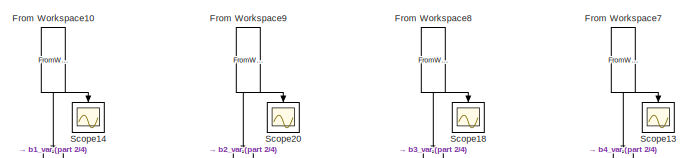
[diagram: root canvas - part 1/4, top center region]
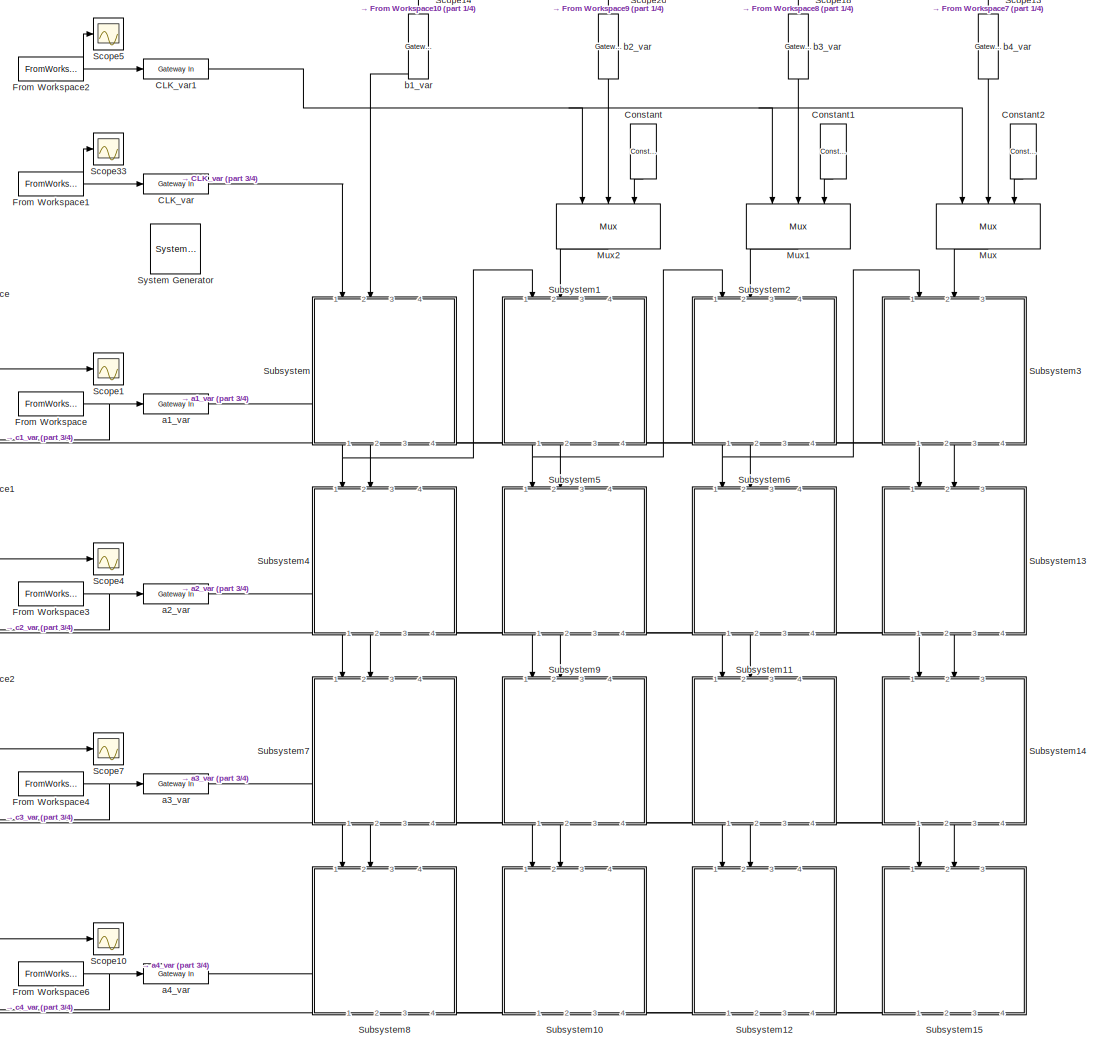
[diagram: root canvas - part 2/4, center side, full height]
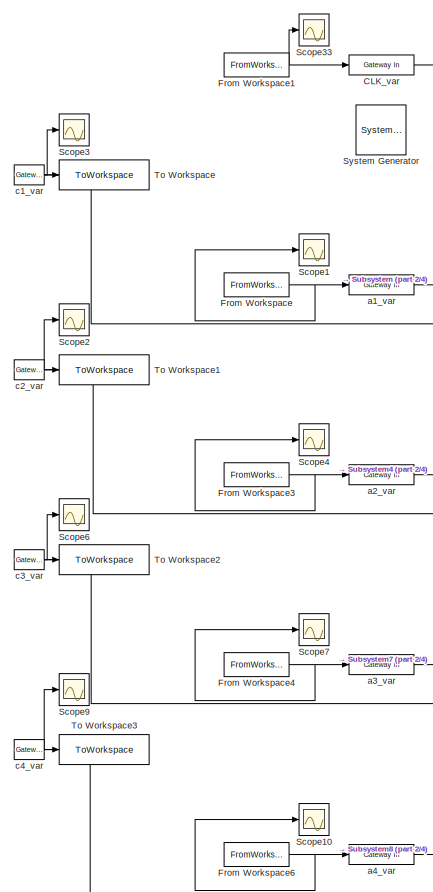
[diagram: root canvas - part 3/4, left side, full height]
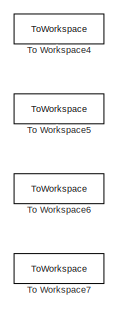
[diagram: root canvas - part 4/4, middle right region]
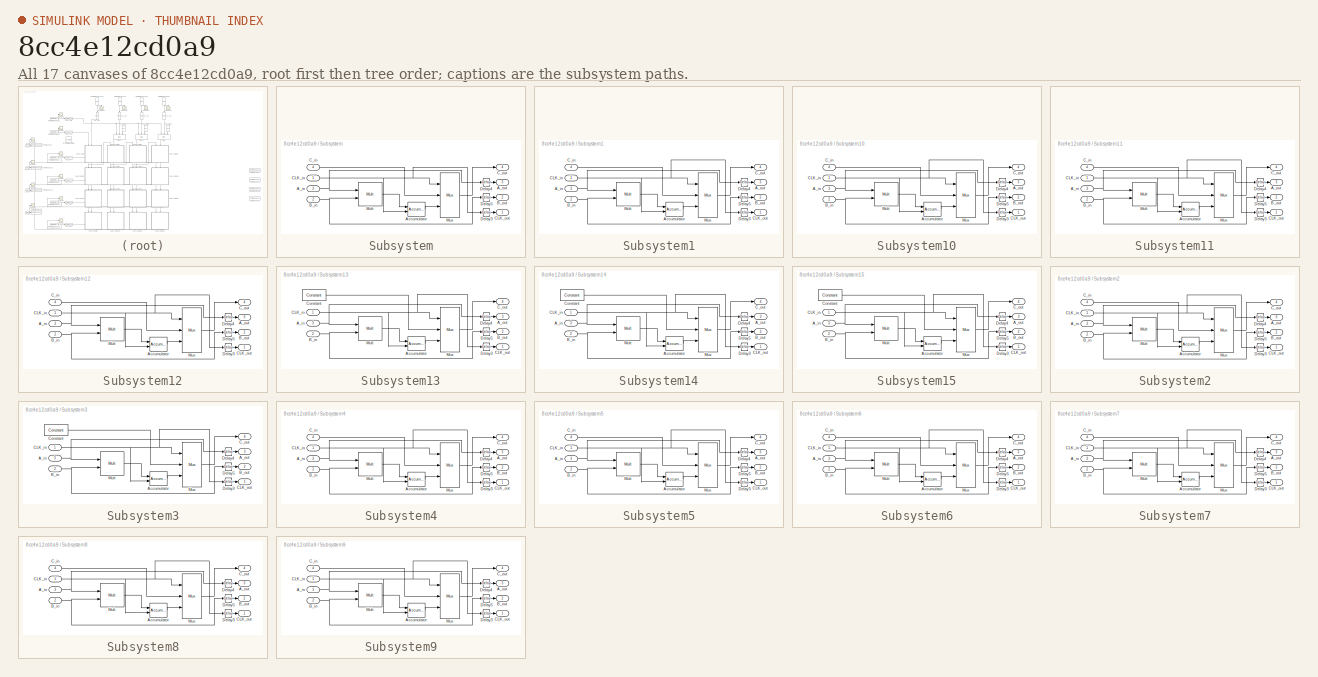
[diagram: thumbnail index - all 17 canvases of the model, root first then tree order]
MODEL slx_8cc4e12cd0a9
KIND model
CONFIG AbsTol = auto
CONFIG EnableMultiTasking = off
CONFIG FixedStep = auto
CONFIG MaxStep = auto
CONFIG MinStep = auto
CONFIG RelTol = 1e-3
CONFIG SampleTimeConstraint = Unconstrained
CONFIG SolverName = VariableStepAuto
CONFIG StartTime = 0.0
CONFIG StopTime = 13
BLOCK [Reference]  System Generator  REF=xbsIndex_r4/ System Generator
  AttributesFormatString = System\nGenerator
  Ports = []
  SourceBlock = xbsIndex_r4/ System Generator
  SourceType = Xilinx System Generator Block
  Tag = genX
  UserDataPersistent = on
BLOCK [Reference] CLK_var  REF=hdlBasic/Gateway In
  Ports = [1, 1]
  SourceBlock = hdlBasic/Gateway In
  SourceType = Gateway In Block
BLOCK [Reference] CLK_var1  REF=hdlBasic/Gateway In
  Ports = [1, 1]
  SourceBlock = hdlBasic/Gateway In
  SourceType = Gateway In Block
BLOCK [Reference] Constant  REF=hdlBasic/Constant
  NameLocation = left
  Ports = [0, 1]
  SourceBlock = hdlBasic/Constant
  SourceType = Constant Block Block
BLOCK [Reference] Constant1  REF=hdlBasic/Constant
  NameLocation = left
  Ports = [0, 1]
  SourceBlock = hdlBasic/Constant
  SourceType = Constant Block Block
BLOCK [Reference] Constant2  REF=hdlBasic/Constant
  NameLocation = left
  Ports = [0, 1]
  SourceBlock = hdlBasic/Constant
  SourceType = Constant Block Block
BLOCK [FromWorkspace] From Workspace
  VariableName = a1_var
BLOCK [FromWorkspace] From Workspace1
  NameLocation = right
  VariableName = clock_var
BLOCK [FromWorkspace] From Workspace10
  NameLocation = left
  VariableName = b1_var
BLOCK [FromWorkspace] From Workspace2
  NameLocation = right
  VariableName = matrix_vector_mode_var
BLOCK [FromWorkspace] From Workspace3
  VariableName = a2_var
BLOCK [FromWorkspace] From Workspace4
  VariableName = a3_var
BLOCK [FromWorkspace] From Workspace6
  VariableName = a4_var
BLOCK [FromWorkspace] From Workspace7
  NameLocation = left
  VariableName = b4_var
BLOCK [FromWorkspace] From Workspace8
  NameLocation = left
  VariableName = b3_var
BLOCK [FromWorkspace] From Workspace9
  NameLocation = left
  VariableName = b2_var
BLOCK [Reference] Mux  REF=hdlBasic/Mux
  NameLocation = left
  Ports = [3, 1]
  SourceBlock = hdlBasic/Mux
  SourceType = Bus Multiplexer Block
BLOCK [Reference] Mux1  REF=hdlBasic/Mux
  NameLocation = left
  Ports = [3, 1]
  SourceBlock = hdlBasic/Mux
  SourceType = Bus Multiplexer Block
BLOCK [Reference] Mux2  REF=hdlBasic/Mux
  NameLocation = left
  Ports = [3, 1]
  SourceBlock = hdlBasic/Mux
  SourceType = Bus Multiplexer Block
BLOCK [Scope] Scope1
  Floating = off
  NumInputPorts = 1
  Ports = [1]
  ScopeSpecificationString = Simulink.scopes.TimeScopeBlockCfg('CurrentConfiguration', extmgr.ConfigurationSet(extmgr.Configuration('Core','General UI',true),extmgr.Configuration('Core','Source UI',true),extmgr.Configuration('Sources','WiredSimulink',true,'DataLoggingVariableName','ScopeData1','SampleTime','1'),extmgr.Configuration('Visuals','Time Domain',true,'SerializedDisplays',{struct('MinYLimReal','-0.5','MaxYLimReal','4...<+1395ch>
BLOCK [Scope] Scope10
  Floating = off
  NumInputPorts = 1
  Ports = [1]
  ScopeSpecificationString = Simulink.scopes.TimeScopeBlockCfg('CurrentConfiguration', extmgr.ConfigurationSet(extmgr.Configuration('Core','General UI',true),extmgr.Configuration('Core','Source UI',true),extmgr.Configuration('Sources','WiredSimulink',true,'DataLoggingVariableName','ScopeData3','SampleTime','1'),extmgr.Configuration('Visuals','Time Domain',true,'SerializedDisplays',{struct('MinYLimReal','-110.00000','MaxYLimRe...<+1433ch>
BLOCK [Scope] Scope13
  Floating = off
  NameLocation = left
  NumInputPorts = 1
  Ports = [1]
  ScopeSpecificationString = Simulink.scopes.TimeScopeBlockCfg('CurrentConfiguration', extmgr.ConfigurationSet(extmgr.Configuration('Core','General UI',true),extmgr.Configuration('Core','Source UI',true),extmgr.Configuration('Sources','WiredSimulink',true,'DataLoggingVariableName','ScopeData8','SampleTime','1'),extmgr.Configuration('Visuals','Time Domain',true,'SerializedDisplays',{struct('MinYLimReal','-0.5','MaxYLimReal','4...<+1396ch>
BLOCK [Scope] Scope14
  Floating = off
  NameLocation = left
  NumInputPorts = 1
  Ports = [1]
  ScopeSpecificationString = Simulink.scopes.TimeScopeBlockCfg('CurrentConfiguration', extmgr.ConfigurationSet(extmgr.Configuration('Core','General UI',true),extmgr.Configuration('Core','Source UI',true),extmgr.Configuration('Sources','WiredSimulink',true,'DataLoggingVariableName','ScopeData9','SampleTime','1'),extmgr.Configuration('Visuals','Time Domain',true,'SerializedDisplays',{struct('MinYLimReal','-0.125','MaxYLimReal',...<+1409ch>
BLOCK [Scope] Scope18
  Floating = off
  NameLocation = left
  NumInputPorts = 1
  Ports = [1]
  ScopeSpecificationString = Simulink.scopes.TimeScopeBlockCfg('CurrentConfiguration', extmgr.ConfigurationSet(extmgr.Configuration('Core','General UI',true),extmgr.Configuration('Core','Source UI',true),extmgr.Configuration('Sources','WiredSimulink',true,'DataLoggingVariableName','ScopeData12','SampleTime','1'),extmgr.Configuration('Visuals','Time Domain',true,'SerializedDisplays',{struct('MinYLimReal','-0.375','MaxYLimReal'...<+1409ch>
BLOCK [Scope] Scope2
  AttributesFormatString = texttest
  Description = C14
  Floating = off
  NumInputPorts = 1
  Ports = [1]
  ScopeSpecificationString = Simulink.scopes.TimeScopeBlockCfg('CurrentConfiguration', extmgr.ConfigurationSet(extmgr.Configuration('Core','General UI',true),extmgr.Configuration('Core','Source UI',true),extmgr.Configuration('Sources','WiredSimulink',true,'DataLoggingVariableName','ScopeData1'),extmgr.Configuration('Visuals','Time Domain',true,'SerializedDisplays',{struct('MinYLimReal','-5.00000','MaxYLimReal','45.00000','YLa...<+1418ch>
BLOCK [Scope] Scope20
  Floating = off
  NameLocation = left
  NumInputPorts = 1
  Ports = [1]
  ScopeSpecificationString = Simulink.scopes.TimeScopeBlockCfg('CurrentConfiguration', extmgr.ConfigurationSet(extmgr.Configuration('Core','General UI',true),extmgr.Configuration('Core','Source UI',true),extmgr.Configuration('Sources','WiredSimulink',true,'DataLoggingVariableName','ScopeData14','SampleTime','1'),extmgr.Configuration('Visuals','Time Domain',true,'SerializedDisplays',{struct('MinYLimReal','-0.25','MaxYLimReal',...<+1403ch>
BLOCK [Scope] Scope3
  AttributesFormatString = texttest
  Description = C14
  Floating = off
  NumInputPorts = 1
  Ports = [1]
  ScopeSpecificationString = Simulink.scopes.TimeScopeBlockCfg('CurrentConfiguration', extmgr.ConfigurationSet(extmgr.Configuration('Core','General UI',true),extmgr.Configuration('Core','Source UI',true),extmgr.Configuration('Sources','WiredSimulink',true,'DataLoggingVariableName','ScopeData2'),extmgr.Configuration('Visuals','Time Domain',true,'SerializedDisplays',{struct('MinYLimReal','-15.00000','MaxYLimReal','135.00000','Y...<+1424ch>
BLOCK [Scope] Scope33
  Floating = off
  NumInputPorts = 1
  Ports = [1]
  ScopeSpecificationString = Simulink.scopes.TimeScopeBlockCfg('CurrentConfiguration', extmgr.ConfigurationSet(extmgr.Configuration('Core','General UI',true),extmgr.Configuration('Core','Source UI',true),extmgr.Configuration('Sources','WiredSimulink',true,'DataLoggingVariableName','ScopeData1','SampleTime','1'),extmgr.Configuration('Visuals','Time Domain',true,'SerializedDisplays',{struct('MinYLimReal','-0.125','MaxYLimReal',...<+1409ch>
BLOCK [Scope] Scope4
  Floating = off
  NumInputPorts = 1
  Ports = [1]
  ScopeSpecificationString = Simulink.scopes.TimeScopeBlockCfg('CurrentConfiguration', extmgr.ConfigurationSet(extmgr.Configuration('Core','General UI',true),extmgr.Configuration('Core','Source UI',true),extmgr.Configuration('Sources','WiredSimulink',true,'DataLoggingVariableName','ScopeData1','SampleTime','1'),extmgr.Configuration('Visuals','Time Domain',true,'SerializedDisplays',{struct('MinYLimReal','-0.5','MaxYLimReal','4...<+1396ch>
BLOCK [Scope] Scope5
  Floating = off
  NumInputPorts = 1
  Ports = [1]
  ScopeSpecificationString = Simulink.scopes.TimeScopeBlockCfg('CurrentConfiguration', extmgr.ConfigurationSet(extmgr.Configuration('Core','General UI',true),extmgr.Configuration('Core','Source UI',true),extmgr.Configuration('Sources','WiredSimulink',true,'DataLoggingVariableName','ScopeData1','SampleTime','1'),extmgr.Configuration('Visuals','Time Domain',true,'SerializedDisplays',{struct('MinYLimReal','-0.125','MaxYLimReal',...<+1409ch>
BLOCK [Scope] Scope6
  AttributesFormatString = texttest
  Description = C14
  Floating = off
  NumInputPorts = 1
  Ports = [1]
  ScopeSpecificationString = Simulink.scopes.TimeScopeBlockCfg('CurrentConfiguration', extmgr.ConfigurationSet(extmgr.Configuration('Core','General UI',true),extmgr.Configuration('Core','Source UI',true),extmgr.Configuration('Sources','WiredSimulink',true,'DataLoggingVariableName','ScopeData3'),extmgr.Configuration('Visuals','Time Domain',true,'SerializedDisplays',{struct('MinYLimReal','-5.00000','MaxYLimReal','45.00000','YLa...<+1418ch>
BLOCK [Scope] Scope7
  Floating = off
  NumInputPorts = 1
  Ports = [1]
  ScopeSpecificationString = Simulink.scopes.TimeScopeBlockCfg('CurrentConfiguration', extmgr.ConfigurationSet(extmgr.Configuration('Core','General UI',true),extmgr.Configuration('Core','Source UI',true),extmgr.Configuration('Sources','WiredSimulink',true,'DataLoggingVariableName','ScopeData6','SampleTime','1'),extmgr.Configuration('Visuals','Time Domain',true,'SerializedDisplays',{struct('MinYLimReal','-0.5','MaxYLimReal','4...<+1396ch>
BLOCK [Scope] Scope9
  AttributesFormatString = texttest
  Description = C14
  Floating = off
  NumInputPorts = 1
  Ports = [1]
  ScopeSpecificationString = Simulink.scopes.TimeScopeBlockCfg('CurrentConfiguration', extmgr.ConfigurationSet(extmgr.Configuration('Core','General UI',true),extmgr.Configuration('Core','Source UI',true),extmgr.Configuration('Sources','WiredSimulink',true,'DataLoggingVariableName','ScopeData4'),extmgr.Configuration('Visuals','Time Domain',true,'SerializedDisplays',{struct('MinYLimReal','-5.00000','MaxYLimReal','45.00000','YLa...<+1418ch>
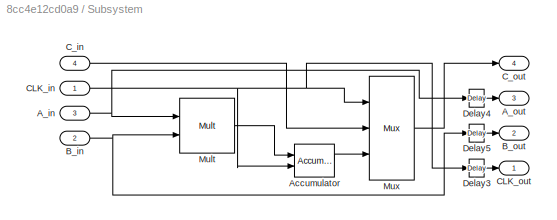
BLOCK [SubSystem] Subsystem
  NameLocation = left
  PortSchema = {"entries":[{"content":{"sides":[{"content":{"connectorIds":["In1","In2"]},"type":"ConnectorPlacement.EquallySpacedRectSide","uuid":"d43d3dc0-f2a2-4485-9cc8-fdcdc63c7c64"},{"content":{"connectorIds":["Out1","Out2"],"side":"RIGHT"},"type":"ConnectorPlacement.EquallySpacedRectSide","uuid":"56044226-4723-40c7-a478-8333213a0054"},{"content":{"connectorIds":["Out4","In3"],"side":"TOP"},"type":"Connecto...<+421ch>  <repeated x12 — deduplicated; at blocks: Subsystem, Subsystem1, Subsystem10, Subsystem11, Subsystem12, Subsystem2, Subsystem4, Subsystem5, Subsystem6, Subsystem7, Subsystem8, Subsystem9>
  Ports = [4, 4]
  RequestExecContextInheritance = off
BLOCK [Inport] Subsystem/A_in
  Port = 3
BLOCK [Outport] Subsystem/A_out
  Port = 3
BLOCK [Reference] Subsystem/Accumulator  REF=hdlBasic/Accumulator
  Ports = [2, 1]
  SourceBlock = hdlBasic/Accumulator
  SourceType = Accumulator Block
BLOCK [Inport] Subsystem/B_in
  Port = 2
BLOCK [Outport] Subsystem/B_out
  Port = 2
BLOCK [Inport] Subsystem/CLK_in
BLOCK [Outport] Subsystem/CLK_out
BLOCK [Inport] Subsystem/C_in
  Port = 4
BLOCK [Outport] Subsystem/C_out
  Port = 4
BLOCK [Reference] Subsystem/Delay3  REF=hdlBasic/Delay
  Ports = [1, 1]
  SourceBlock = hdlBasic/Delay
  SourceType = Delay Block
BLOCK [Reference] Subsystem/Delay4  REF=hdlBasic/Delay
  Ports = [1, 1]
  SourceBlock = hdlBasic/Delay
  SourceType = Delay Block
BLOCK [Reference] Subsystem/Delay5  REF=hdlBasic/Delay
  Ports = [1, 1]
  SourceBlock = hdlBasic/Delay
  SourceType = Delay Block
BLOCK [Reference] Subsystem/Mult  REF=hdlBasic/Mult
  Ports = [2, 1]
  SourceBlock = hdlBasic/Mult
  SourceType = Multiplier Block
BLOCK [Reference] Subsystem/Mux  REF=hdlBasic/Mux
  Ports = [3, 1]
  SourceBlock = hdlBasic/Mux
  SourceType = Bus Multiplexer Block
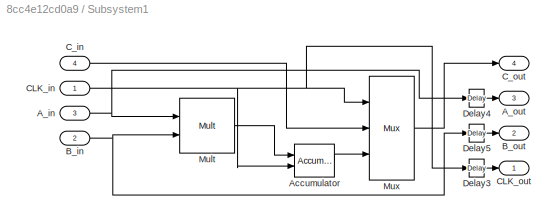
BLOCK [SubSystem] Subsystem1
  NameLocation = left
  Ports = [4, 4]
  RequestExecContextInheritance = off
BLOCK [Inport] Subsystem1/A_in
  Port = 3
BLOCK [Outport] Subsystem1/A_out
  Port = 3
BLOCK [Reference] Subsystem1/Accumulator  REF=hdlBasic/Accumulator
  Ports = [2, 1]
  SourceBlock = hdlBasic/Accumulator
  SourceType = Accumulator Block
BLOCK [Inport] Subsystem1/B_in
  Port = 2
BLOCK [Outport] Subsystem1/B_out
  Port = 2
BLOCK [Inport] Subsystem1/CLK_in
BLOCK [Outport] Subsystem1/CLK_out
BLOCK [Inport] Subsystem1/C_in
  Port = 4
BLOCK [Outport] Subsystem1/C_out
  Port = 4
BLOCK [Reference] Subsystem1/Delay3  REF=hdlBasic/Delay
  Ports = [1, 1]
  SourceBlock = hdlBasic/Delay
  SourceType = Delay Block
BLOCK [Reference] Subsystem1/Delay4  REF=hdlBasic/Delay
  Ports = [1, 1]
  SourceBlock = hdlBasic/Delay
  SourceType = Delay Block
BLOCK [Reference] Subsystem1/Delay5  REF=hdlBasic/Delay
  Ports = [1, 1]
  SourceBlock = hdlBasic/Delay
  SourceType = Delay Block
BLOCK [Reference] Subsystem1/Mult  REF=hdlBasic/Mult
  Ports = [2, 1]
  SourceBlock = hdlBasic/Mult
  SourceType = Multiplier Block
BLOCK [Reference] Subsystem1/Mux  REF=hdlBasic/Mux
  Ports = [3, 1]
  SourceBlock = hdlBasic/Mux
  SourceType = Bus Multiplexer Block
BLOCK [SubSystem] Subsystem10
  NameLocation = left
  Ports = [4, 4]
  RequestExecContextInheritance = off
BLOCK [Inport] Subsystem10/A_in
  Port = 3
BLOCK [Outport] Subsystem10/A_out
  Port = 3
BLOCK [Reference] Subsystem10/Accumulator  REF=hdlBasic/Accumulator
  Ports = [2, 1]
  SourceBlock = hdlBasic/Accumulator
  SourceType = Accumulator Block
BLOCK [Inport] Subsystem10/B_in
  Port = 2
BLOCK [Outport] Subsystem10/B_out
  Port = 2
BLOCK [Inport] Subsystem10/CLK_in
BLOCK [Outport] Subsystem10/CLK_out
BLOCK [Inport] Subsystem10/C_in
  Port = 4
BLOCK [Outport] Subsystem10/C_out
  Port = 4
BLOCK [Reference] Subsystem10/Delay3  REF=hdlBasic/Delay
  Ports = [1, 1]
  SourceBlock = hdlBasic/Delay
  SourceType = Delay Block
BLOCK [Reference] Subsystem10/Delay4  REF=hdlBasic/Delay
  Ports = [1, 1]
  SourceBlock = hdlBasic/Delay
  SourceType = Delay Block
BLOCK [Reference] Subsystem10/Delay5  REF=hdlBasic/Delay
  Ports = [1, 1]
  SourceBlock = hdlBasic/Delay
  SourceType = Delay Block
BLOCK [Reference] Subsystem10/Mult  REF=hdlBasic/Mult
  Ports = [2, 1]
  SourceBlock = hdlBasic/Mult
  SourceType = Multiplier Block
BLOCK [Reference] Subsystem10/Mux  REF=hdlBasic/Mux
  Ports = [3, 1]
  SourceBlock = hdlBasic/Mux
  SourceType = Bus Multiplexer Block
BLOCK [SubSystem] Subsystem11
  NameLocation = left
  Ports = [4, 4]
  RequestExecContextInheritance = off
BLOCK [Inport] Subsystem11/A_in
  Port = 3
BLOCK [Outport] Subsystem11/A_out
  Port = 3
BLOCK [Reference] Subsystem11/Accumulator  REF=hdlBasic/Accumulator
  Ports = [2, 1]
  SourceBlock = hdlBasic/Accumulator
  SourceType = Accumulator Block
BLOCK [Inport] Subsystem11/B_in
  Port = 2
BLOCK [Outport] Subsystem11/B_out
  Port = 2
BLOCK [Inport] Subsystem11/CLK_in
BLOCK [Outport] Subsystem11/CLK_out
BLOCK [Inport] Subsystem11/C_in
  Port = 4
BLOCK [Outport] Subsystem11/C_out
  Port = 4
BLOCK [Reference] Subsystem11/Delay3  REF=hdlBasic/Delay
  Ports = [1, 1]
  SourceBlock = hdlBasic/Delay
  SourceType = Delay Block
BLOCK [Reference] Subsystem11/Delay4  REF=hdlBasic/Delay
  Ports = [1, 1]
  SourceBlock = hdlBasic/Delay
  SourceType = Delay Block
BLOCK [Reference] Subsystem11/Delay5  REF=hdlBasic/Delay
  Ports = [1, 1]
  SourceBlock = hdlBasic/Delay
  SourceType = Delay Block
BLOCK [Reference] Subsystem11/Mult  REF=hdlBasic/Mult
  Ports = [2, 1]
  SourceBlock = hdlBasic/Mult
  SourceType = Multiplier Block
BLOCK [Reference] Subsystem11/Mux  REF=hdlBasic/Mux
  Ports = [3, 1]
  SourceBlock = hdlBasic/Mux
  SourceType = Bus Multiplexer Block
BLOCK [SubSystem] Subsystem12
  NameLocation = left
  Ports = [4, 4]
  RequestExecContextInheritance = off
BLOCK [Inport] Subsystem12/A_in
  Port = 3
BLOCK [Outport] Subsystem12/A_out
  Port = 3
BLOCK [Reference] Subsystem12/Accumulator  REF=hdlBasic/Accumulator
  Ports = [2, 1]
  SourceBlock = hdlBasic/Accumulator
  SourceType = Accumulator Block
BLOCK [Inport] Subsystem12/B_in
  Port = 2
BLOCK [Outport] Subsystem12/B_out
  Port = 2
BLOCK [Inport] Subsystem12/CLK_in
BLOCK [Outport] Subsystem12/CLK_out
BLOCK [Inport] Subsystem12/C_in
  Port = 4
BLOCK [Outport] Subsystem12/C_out
  Port = 4
BLOCK [Reference] Subsystem12/Delay3  REF=hdlBasic/Delay
  Ports = [1, 1]
  SourceBlock = hdlBasic/Delay
  SourceType = Delay Block
BLOCK [Reference] Subsystem12/Delay4  REF=hdlBasic/Delay
  Ports = [1, 1]
  SourceBlock = hdlBasic/Delay
  SourceType = Delay Block
BLOCK [Reference] Subsystem12/Delay5  REF=hdlBasic/Delay
  Ports = [1, 1]
  SourceBlock = hdlBasic/Delay
  SourceType = Delay Block
BLOCK [Reference] Subsystem12/Mult  REF=hdlBasic/Mult
  Ports = [2, 1]
  SourceBlock = hdlBasic/Mult
  SourceType = Multiplier Block
BLOCK [Reference] Subsystem12/Mux  REF=hdlBasic/Mux
  Ports = [3, 1]
  SourceBlock = hdlBasic/Mux
  SourceType = Bus Multiplexer Block
BLOCK [SubSystem] Subsystem13
  NameLocation = left
  PortSchema = {"entries":[{"content":{"sides":[{"content":{"connectorIds":["In1","In2"]},"type":"ConnectorPlacement.EquallySpacedRectSide","uuid":"d43d3dc0-f2a2-4485-9cc8-fdcdc63c7c64"},{"content":{"connectorIds":["Out1","Out2"],"side":"RIGHT"},"type":"ConnectorPlacement.EquallySpacedRectSide","uuid":"56044226-4723-40c7-a478-8333213a0054"},{"content":{"connectorIds":["Out4","In3"],"side":"TOP"},"type":"Connecto...<+415ch>  <repeated x4 — deduplicated; at blocks: Subsystem13, Subsystem14, Subsystem15, Subsystem3>
  Ports = [3, 4]
  RequestExecContextInheritance = off
BLOCK [Inport] Subsystem13/A_in
  Port = 3
BLOCK [Outport] Subsystem13/A_out
  Port = 3
BLOCK [Reference] Subsystem13/Accumulator  REF=hdlBasic/Accumulator
  Ports = [2, 1]
  SourceBlock = hdlBasic/Accumulator
  SourceType = Accumulator Block
BLOCK [Inport] Subsystem13/B_in
  Port = 2
BLOCK [Outport] Subsystem13/B_out
  Port = 2
BLOCK [Inport] Subsystem13/CLK_in
BLOCK [Outport] Subsystem13/CLK_out
BLOCK [Outport] Subsystem13/C_out
  Port = 4
BLOCK [Reference] Subsystem13/Constant  REF=hdlBasic/Constant
  Ports = [0, 1]
  SourceBlock = hdlBasic/Constant
  SourceType = Constant Block Block
BLOCK [Reference] Subsystem13/Delay3  REF=hdlBasic/Delay
  Ports = [1, 1]
  SourceBlock = hdlBasic/Delay
  SourceType = Delay Block
BLOCK [Reference] Subsystem13/Delay4  REF=hdlBasic/Delay
  Ports = [1, 1]
  SourceBlock = hdlBasic/Delay
  SourceType = Delay Block
BLOCK [Reference] Subsystem13/Delay5  REF=hdlBasic/Delay
  Ports = [1, 1]
  SourceBlock = hdlBasic/Delay
  SourceType = Delay Block
BLOCK [Reference] Subsystem13/Mult  REF=hdlBasic/Mult
  Ports = [2, 1]
  SourceBlock = hdlBasic/Mult
  SourceType = Multiplier Block
BLOCK [Reference] Subsystem13/Mux  REF=hdlBasic/Mux
  Ports = [3, 1]
  SourceBlock = hdlBasic/Mux
  SourceType = Bus Multiplexer Block
BLOCK [SubSystem] Subsystem14
  NameLocation = left
  Ports = [3, 4]
  RequestExecContextInheritance = off
BLOCK [Inport] Subsystem14/A_in
  Port = 3
BLOCK [Outport] Subsystem14/A_out
  Port = 3
BLOCK [Reference] Subsystem14/Accumulator  REF=hdlBasic/Accumulator
  Ports = [2, 1]
  SourceBlock = hdlBasic/Accumulator
  SourceType = Accumulator Block
BLOCK [Inport] Subsystem14/B_in
  Port = 2
BLOCK [Outport] Subsystem14/B_out
  Port = 2
BLOCK [Inport] Subsystem14/CLK_in
BLOCK [Outport] Subsystem14/CLK_out
BLOCK [Outport] Subsystem14/C_out
  Port = 4
BLOCK [Reference] Subsystem14/Constant  REF=hdlBasic/Constant
  Ports = [0, 1]
  SourceBlock = hdlBasic/Constant
  SourceType = Constant Block Block
BLOCK [Reference] Subsystem14/Delay3  REF=hdlBasic/Delay
  Ports = [1, 1]
  SourceBlock = hdlBasic/Delay
  SourceType = Delay Block
BLOCK [Reference] Subsystem14/Delay4  REF=hdlBasic/Delay
  Ports = [1, 1]
  SourceBlock = hdlBasic/Delay
  SourceType = Delay Block
BLOCK [Reference] Subsystem14/Delay5  REF=hdlBasic/Delay
  Ports = [1, 1]
  SourceBlock = hdlBasic/Delay
  SourceType = Delay Block
BLOCK [Reference] Subsystem14/Mult  REF=hdlBasic/Mult
  Ports = [2, 1]
  SourceBlock = hdlBasic/Mult
  SourceType = Multiplier Block
BLOCK [Reference] Subsystem14/Mux  REF=hdlBasic/Mux
  Ports = [3, 1]
  SourceBlock = hdlBasic/Mux
  SourceType = Bus Multiplexer Block
BLOCK [SubSystem] Subsystem15
  NameLocation = left
  Ports = [3, 4]
  RequestExecContextInheritance = off
BLOCK [Inport] Subsystem15/A_in
  Port = 3
BLOCK [Outport] Subsystem15/A_out
  Port = 3
BLOCK [Reference] Subsystem15/Accumulator  REF=hdlBasic/Accumulator
  Ports = [2, 1]
  SourceBlock = hdlBasic/Accumulator
  SourceType = Accumulator Block
BLOCK [Inport] Subsystem15/B_in
  Port = 2
BLOCK [Outport] Subsystem15/B_out
  Port = 2
BLOCK [Inport] Subsystem15/CLK_in
BLOCK [Outport] Subsystem15/CLK_out
BLOCK [Outport] Subsystem15/C_out
  Port = 4
BLOCK [Reference] Subsystem15/Constant  REF=hdlBasic/Constant
  Ports = [0, 1]
  SourceBlock = hdlBasic/Constant
  SourceType = Constant Block Block
BLOCK [Reference] Subsystem15/Delay3  REF=hdlBasic/Delay
  Ports = [1, 1]
  SourceBlock = hdlBasic/Delay
  SourceType = Delay Block
BLOCK [Reference] Subsystem15/Delay4  REF=hdlBasic/Delay
  Ports = [1, 1]
  SourceBlock = hdlBasic/Delay
  SourceType = Delay Block
BLOCK [Reference] Subsystem15/Delay5  REF=hdlBasic/Delay
  Ports = [1, 1]
  SourceBlock = hdlBasic/Delay
  SourceType = Delay Block
BLOCK [Reference] Subsystem15/Mult  REF=hdlBasic/Mult
  Ports = [2, 1]
  SourceBlock = hdlBasic/Mult
  SourceType = Multiplier Block
BLOCK [Reference] Subsystem15/Mux  REF=hdlBasic/Mux
  Ports = [3, 1]
  SourceBlock = hdlBasic/Mux
  SourceType = Bus Multiplexer Block
BLOCK [SubSystem] Subsystem2
  NameLocation = left
  Ports = [4, 4]
  RequestExecContextInheritance = off
BLOCK [Inport] Subsystem2/A_in
  Port = 3
BLOCK [Outport] Subsystem2/A_out
  Port = 3
BLOCK [Reference] Subsystem2/Accumulator  REF=hdlBasic/Accumulator
  Ports = [2, 1]
  SourceBlock = hdlBasic/Accumulator
  SourceType = Accumulator Block
BLOCK [Inport] Subsystem2/B_in
  Port = 2
BLOCK [Outport] Subsystem2/B_out
  Port = 2
BLOCK [Inport] Subsystem2/CLK_in
BLOCK [Outport] Subsystem2/CLK_out
BLOCK [Inport] Subsystem2/C_in
  Port = 4
BLOCK [Outport] Subsystem2/C_out
  Port = 4
BLOCK [Reference] Subsystem2/Delay3  REF=hdlBasic/Delay
  Ports = [1, 1]
  SourceBlock = hdlBasic/Delay
  SourceType = Delay Block
BLOCK [Reference] Subsystem2/Delay4  REF=hdlBasic/Delay
  Ports = [1, 1]
  SourceBlock = hdlBasic/Delay
  SourceType = Delay Block
BLOCK [Reference] Subsystem2/Delay5  REF=hdlBasic/Delay
  Ports = [1, 1]
  SourceBlock = hdlBasic/Delay
  SourceType = Delay Block
BLOCK [Reference] Subsystem2/Mult  REF=hdlBasic/Mult
  Ports = [2, 1]
  SourceBlock = hdlBasic/Mult
  SourceType = Multiplier Block
BLOCK [Reference] Subsystem2/Mux  REF=hdlBasic/Mux
  Ports = [3, 1]
  SourceBlock = hdlBasic/Mux
  SourceType = Bus Multiplexer Block
BLOCK [SubSystem] Subsystem3
  NameLocation = left
  Ports = [3, 4]
  RequestExecContextInheritance = off
BLOCK [Inport] Subsystem3/A_in
  Port = 3
BLOCK [Outport] Subsystem3/A_out
  Port = 3
BLOCK [Reference] Subsystem3/Accumulator  REF=hdlBasic/Accumulator
  Ports = [2, 1]
  SourceBlock = hdlBasic/Accumulator
  SourceType = Accumulator Block
BLOCK [Inport] Subsystem3/B_in
  Port = 2
BLOCK [Outport] Subsystem3/B_out
  Port = 2
BLOCK [Inport] Subsystem3/CLK_in
BLOCK [Outport] Subsystem3/CLK_out
BLOCK [Outport] Subsystem3/C_out
  Port = 4
BLOCK [Reference] Subsystem3/Constant  REF=hdlBasic/Constant
  Ports = [0, 1]
  SourceBlock = hdlBasic/Constant
  SourceType = Constant Block Block
BLOCK [Reference] Subsystem3/Delay3  REF=hdlBasic/Delay
  Ports = [1, 1]
  SourceBlock = hdlBasic/Delay
  SourceType = Delay Block
BLOCK [Reference] Subsystem3/Delay4  REF=hdlBasic/Delay
  Ports = [1, 1]
  SourceBlock = hdlBasic/Delay
  SourceType = Delay Block
BLOCK [Reference] Subsystem3/Delay5  REF=hdlBasic/Delay
  Ports = [1, 1]
  SourceBlock = hdlBasic/Delay
  SourceType = Delay Block
BLOCK [Reference] Subsystem3/Mult  REF=hdlBasic/Mult
  Ports = [2, 1]
  SourceBlock = hdlBasic/Mult
  SourceType = Multiplier Block
BLOCK [Reference] Subsystem3/Mux  REF=hdlBasic/Mux
  Ports = [3, 1]
  SourceBlock = hdlBasic/Mux
  SourceType = Bus Multiplexer Block
BLOCK [SubSystem] Subsystem4
  NameLocation = left
  Ports = [4, 4]
  RequestExecContextInheritance = off
BLOCK [Inport] Subsystem4/A_in
  Port = 3
BLOCK [Outport] Subsystem4/A_out
  Port = 3
BLOCK [Reference] Subsystem4/Accumulator  REF=hdlBasic/Accumulator
  Ports = [2, 1]
  SourceBlock = hdlBasic/Accumulator
  SourceType = Accumulator Block
BLOCK [Inport] Subsystem4/B_in
  Port = 2
BLOCK [Outport] Subsystem4/B_out
  Port = 2
BLOCK [Inport] Subsystem4/CLK_in
BLOCK [Outport] Subsystem4/CLK_out
BLOCK [Inport] Subsystem4/C_in
  Port = 4
BLOCK [Outport] Subsystem4/C_out
  Port = 4
BLOCK [Reference] Subsystem4/Delay3  REF=hdlBasic/Delay
  Ports = [1, 1]
  SourceBlock = hdlBasic/Delay
  SourceType = Delay Block
BLOCK [Reference] Subsystem4/Delay4  REF=hdlBasic/Delay
  Ports = [1, 1]
  SourceBlock = hdlBasic/Delay
  SourceType = Delay Block
BLOCK [Reference] Subsystem4/Delay5  REF=hdlBasic/Delay
  Ports = [1, 1]
  SourceBlock = hdlBasic/Delay
  SourceType = Delay Block
BLOCK [Reference] Subsystem4/Mult  REF=hdlBasic/Mult
  Ports = [2, 1]
  SourceBlock = hdlBasic/Mult
  SourceType = Multiplier Block
BLOCK [Reference] Subsystem4/Mux  REF=hdlBasic/Mux
  Ports = [3, 1]
  SourceBlock = hdlBasic/Mux
  SourceType = Bus Multiplexer Block
BLOCK [SubSystem] Subsystem5
  NameLocation = left
  Ports = [4, 4]
  RequestExecContextInheritance = off
BLOCK [Inport] Subsystem5/A_in
  Port = 3
BLOCK [Outport] Subsystem5/A_out
  Port = 3
BLOCK [Reference] Subsystem5/Accumulator  REF=hdlBasic/Accumulator
  Ports = [2, 1]
  SourceBlock = hdlBasic/Accumulator
  SourceType = Accumulator Block
BLOCK [Inport] Subsystem5/B_in
  Port = 2
BLOCK [Outport] Subsystem5/B_out
  Port = 2
BLOCK [Inport] Subsystem5/CLK_in
BLOCK [Outport] Subsystem5/CLK_out
BLOCK [Inport] Subsystem5/C_in
  Port = 4
BLOCK [Outport] Subsystem5/C_out
  Port = 4
BLOCK [Reference] Subsystem5/Delay3  REF=hdlBasic/Delay
  Ports = [1, 1]
  SourceBlock = hdlBasic/Delay
  SourceType = Delay Block
BLOCK [Reference] Subsystem5/Delay4  REF=hdlBasic/Delay
  Ports = [1, 1]
  SourceBlock = hdlBasic/Delay
  SourceType = Delay Block
BLOCK [Reference] Subsystem5/Delay5  REF=hdlBasic/Delay
  Ports = [1, 1]
  SourceBlock = hdlBasic/Delay
  SourceType = Delay Block
BLOCK [Reference] Subsystem5/Mult  REF=hdlBasic/Mult
  Ports = [2, 1]
  SourceBlock = hdlBasic/Mult
  SourceType = Multiplier Block
BLOCK [Reference] Subsystem5/Mux  REF=hdlBasic/Mux
  Ports = [3, 1]
  SourceBlock = hdlBasic/Mux
  SourceType = Bus Multiplexer Block
BLOCK [SubSystem] Subsystem6
  NameLocation = left
  Ports = [4, 4]
  RequestExecContextInheritance = off
BLOCK [Inport] Subsystem6/A_in
  Port = 3
BLOCK [Outport] Subsystem6/A_out
  Port = 3
BLOCK [Reference] Subsystem6/Accumulator  REF=hdlBasic/Accumulator
  Ports = [2, 1]
  SourceBlock = hdlBasic/Accumulator
  SourceType = Accumulator Block
BLOCK [Inport] Subsystem6/B_in
  Port = 2
BLOCK [Outport] Subsystem6/B_out
  Port = 2
BLOCK [Inport] Subsystem6/CLK_in
BLOCK [Outport] Subsystem6/CLK_out
BLOCK [Inport] Subsystem6/C_in
  Port = 4
BLOCK [Outport] Subsystem6/C_out
  Port = 4
BLOCK [Reference] Subsystem6/Delay3  REF=hdlBasic/Delay
  Ports = [1, 1]
  SourceBlock = hdlBasic/Delay
  SourceType = Delay Block
BLOCK [Reference] Subsystem6/Delay4  REF=hdlBasic/Delay
  Ports = [1, 1]
  SourceBlock = hdlBasic/Delay
  SourceType = Delay Block
BLOCK [Reference] Subsystem6/Delay5  REF=hdlBasic/Delay
  Ports = [1, 1]
  SourceBlock = hdlBasic/Delay
  SourceType = Delay Block
BLOCK [Reference] Subsystem6/Mult  REF=hdlBasic/Mult
  Ports = [2, 1]
  SourceBlock = hdlBasic/Mult
  SourceType = Multiplier Block
BLOCK [Reference] Subsystem6/Mux  REF=hdlBasic/Mux
  Ports = [3, 1]
  SourceBlock = hdlBasic/Mux
  SourceType = Bus Multiplexer Block
BLOCK [SubSystem] Subsystem7
  NameLocation = left
  Ports = [4, 4]
  RequestExecContextInheritance = off
BLOCK [Inport] Subsystem7/A_in
  Port = 3
BLOCK [Outport] Subsystem7/A_out
  Port = 3
BLOCK [Reference] Subsystem7/Accumulator  REF=hdlBasic/Accumulator
  Ports = [2, 1]
  SourceBlock = hdlBasic/Accumulator
  SourceType = Accumulator Block
BLOCK [Inport] Subsystem7/B_in
  Port = 2
BLOCK [Outport] Subsystem7/B_out
  Port = 2
BLOCK [Inport] Subsystem7/CLK_in
BLOCK [Outport] Subsystem7/CLK_out
BLOCK [Inport] Subsystem7/C_in
  Port = 4
BLOCK [Outport] Subsystem7/C_out
  Port = 4
BLOCK [Reference] Subsystem7/Delay3  REF=hdlBasic/Delay
  Ports = [1, 1]
  SourceBlock = hdlBasic/Delay
  SourceType = Delay Block
BLOCK [Reference] Subsystem7/Delay4  REF=hdlBasic/Delay
  Ports = [1, 1]
  SourceBlock = hdlBasic/Delay
  SourceType = Delay Block
BLOCK [Reference] Subsystem7/Delay5  REF=hdlBasic/Delay
  Ports = [1, 1]
  SourceBlock = hdlBasic/Delay
  SourceType = Delay Block
BLOCK [Reference] Subsystem7/Mult  REF=hdlBasic/Mult
  Ports = [2, 1]
  SourceBlock = hdlBasic/Mult
  SourceType = Multiplier Block
BLOCK [Reference] Subsystem7/Mux  REF=hdlBasic/Mux
  Ports = [3, 1]
  SourceBlock = hdlBasic/Mux
  SourceType = Bus Multiplexer Block
BLOCK [SubSystem] Subsystem8
  NameLocation = left
  Ports = [4, 4]
  RequestExecContextInheritance = off
BLOCK [Inport] Subsystem8/A_in
  Port = 3
BLOCK [Outport] Subsystem8/A_out
  Port = 3
BLOCK [Reference] Subsystem8/Accumulator  REF=hdlBasic/Accumulator
  Ports = [2, 1]
  SourceBlock = hdlBasic/Accumulator
  SourceType = Accumulator Block
BLOCK [Inport] Subsystem8/B_in
  Port = 2
BLOCK [Outport] Subsystem8/B_out
  Port = 2
BLOCK [Inport] Subsystem8/CLK_in
BLOCK [Outport] Subsystem8/CLK_out
BLOCK [Inport] Subsystem8/C_in
  Port = 4
BLOCK [Outport] Subsystem8/C_out
  Port = 4
BLOCK [Reference] Subsystem8/Delay3  REF=hdlBasic/Delay
  Ports = [1, 1]
  SourceBlock = hdlBasic/Delay
  SourceType = Delay Block
BLOCK [Reference] Subsystem8/Delay4  REF=hdlBasic/Delay
  Ports = [1, 1]
  SourceBlock = hdlBasic/Delay
  SourceType = Delay Block
BLOCK [Reference] Subsystem8/Delay5  REF=hdlBasic/Delay
  Ports = [1, 1]
  SourceBlock = hdlBasic/Delay
  SourceType = Delay Block
BLOCK [Reference] Subsystem8/Mult  REF=hdlBasic/Mult
  Ports = [2, 1]
  SourceBlock = hdlBasic/Mult
  SourceType = Multiplier Block
BLOCK [Reference] Subsystem8/Mux  REF=hdlBasic/Mux
  Ports = [3, 1]
  SourceBlock = hdlBasic/Mux
  SourceType = Bus Multiplexer Block
BLOCK [SubSystem] Subsystem9
  NameLocation = left
  Ports = [4, 4]
  RequestExecContextInheritance = off
BLOCK [Inport] Subsystem9/A_in
  Port = 3
BLOCK [Outport] Subsystem9/A_out
  Port = 3
BLOCK [Reference] Subsystem9/Accumulator  REF=hdlBasic/Accumulator
  Ports = [2, 1]
  SourceBlock = hdlBasic/Accumulator
  SourceType = Accumulator Block
BLOCK [Inport] Subsystem9/B_in
  Port = 2
BLOCK [Outport] Subsystem9/B_out
  Port = 2
BLOCK [Inport] Subsystem9/CLK_in
BLOCK [Outport] Subsystem9/CLK_out
BLOCK [Inport] Subsystem9/C_in
  Port = 4
BLOCK [Outport] Subsystem9/C_out
  Port = 4
BLOCK [Reference] Subsystem9/Delay3  REF=hdlBasic/Delay
  Ports = [1, 1]
  SourceBlock = hdlBasic/Delay
  SourceType = Delay Block
BLOCK [Reference] Subsystem9/Delay4  REF=hdlBasic/Delay
  Ports = [1, 1]
  SourceBlock = hdlBasic/Delay
  SourceType = Delay Block
BLOCK [Reference] Subsystem9/Delay5  REF=hdlBasic/Delay
  Ports = [1, 1]
  SourceBlock = hdlBasic/Delay
  SourceType = Delay Block
BLOCK [Reference] Subsystem9/Mult  REF=hdlBasic/Mult
  Ports = [2, 1]
  SourceBlock = hdlBasic/Mult
  SourceType = Multiplier Block
BLOCK [Reference] Subsystem9/Mux  REF=hdlBasic/Mux
  Ports = [3, 1]
  SourceBlock = hdlBasic/Mux
  SourceType = Bus Multiplexer Block
BLOCK [ToWorkspace] To Workspace
  FixptAsFi = on
  MaxDataPoints = inf
  Ports = [1]
  SampleTime = -1
  SaveFormat = Timeseries
  VariableName = c1_var
BLOCK [ToWorkspace] To Workspace1
  FixptAsFi = on
  MaxDataPoints = inf
  Ports = [1]
  SampleTime = -1
  SaveFormat = Timeseries
  VariableName = c2_var
BLOCK [ToWorkspace] To Workspace2
  FixptAsFi = on
  MaxDataPoints = inf
  Ports = [1]
  SampleTime = -1
  SaveFormat = Timeseries
  VariableName = c3_var
BLOCK [ToWorkspace] To Workspace3
  FixptAsFi = on
  MaxDataPoints = inf
  Ports = [1]
  SampleTime = -1
  SaveFormat = Timeseries
  VariableName = c4_var
BLOCK [ToWorkspace] To Workspace4
  Commented = on
  FixptAsFi = on
  MaxDataPoints = inf
  Ports = [1]
  SampleTime = -1
  SaveFormat = Timeseries
  VariableName = c1_var_cosim
BLOCK [ToWorkspace] To Workspace5
  Commented = on
  FixptAsFi = on
  MaxDataPoints = inf
  Ports = [1]
  SampleTime = -1
  SaveFormat = Timeseries
  VariableName = c2_var_cosim
BLOCK [ToWorkspace] To Workspace6
  Commented = on
  FixptAsFi = on
  MaxDataPoints = inf
  Ports = [1]
  SampleTime = -1
  SaveFormat = Timeseries
  VariableName = c3_var_cosim
BLOCK [ToWorkspace] To Workspace7
  Commented = on
  FixptAsFi = on
  MaxDataPoints = inf
  Ports = [1]
  SampleTime = -1
  SaveFormat = Timeseries
  VariableName = c4_var_cosim
BLOCK [Reference] a1_var  REF=hdlBasic/Gateway In
  Ports = [1, 1]
  SourceBlock = hdlBasic/Gateway In
  SourceType = Gateway In Block
BLOCK [Reference] a2_var  REF=hdlBasic/Gateway In
  Ports = [1, 1]
  SourceBlock = hdlBasic/Gateway In
  SourceType = Gateway In Block
BLOCK [Reference] a3_var  REF=hdlBasic/Gateway In
  Ports = [1, 1]
  SourceBlock = hdlBasic/Gateway In
  SourceType = Gateway In Block
BLOCK [Reference] a4_var  REF=hdlBasic/Gateway In
  Ports = [1, 1]
  SourceBlock = hdlBasic/Gateway In
  SourceType = Gateway In Block
BLOCK [Reference] b1_var  REF=hdlBasic/Gateway In
  NameLocation = left
  Ports = [1, 1]
  SourceBlock = hdlBasic/Gateway In
  SourceType = Gateway In Block
BLOCK [Reference] b2_var  REF=hdlBasic/Gateway In
  NameLocation = left
  Ports = [1, 1]
  SourceBlock = hdlBasic/Gateway In
  SourceType = Gateway In Block
BLOCK [Reference] b3_var  REF=hdlBasic/Gateway In
  NameLocation = left
  Ports = [1, 1]
  SourceBlock = hdlBasic/Gateway In
  SourceType = Gateway In Block
BLOCK [Reference] b4_var  REF=hdlBasic/Gateway In
  NameLocation = left
  Ports = [1, 1]
  SourceBlock = hdlBasic/Gateway In
  SourceType = Gateway In Block
BLOCK [Reference] c1_var  REF=hdlBasic/Gateway Out
  Ports = [1, 1]
  SourceBlock = hdlBasic/Gateway Out
  SourceType = Gateway Out Block
BLOCK [Reference] c2_var  REF=hdlBasic/Gateway Out
  Ports = [1, 1]
  SourceBlock = hdlBasic/Gateway Out
  SourceType = Gateway Out Block
BLOCK [Reference] c3_var  REF=hdlBasic/Gateway Out
  Ports = [1, 1]
  SourceBlock = hdlBasic/Gateway Out
  SourceType = Gateway Out Block
BLOCK [Reference] c4_var  REF=hdlBasic/Gateway Out
  Ports = [1, 1]
  SourceBlock = hdlBasic/Gateway Out
  SourceType = Gateway Out Block
NET CLK_var1:1 -> Mux1:1, Mux2:1, Mux:1
LINE CLK_var:1 -> Subsystem:1
LINE Constant1:1 -> Mux1:3
LINE Constant2:1 -> Mux:3
LINE Constant:1 -> Mux2:3
NET From Workspace10:1 -> Scope14:1, b1_var:1
NET From Workspace1:1 -> CLK_var:1, Scope33:1
NET From Workspace2:1 -> CLK_var1:1, Scope5:1
NET From Workspace3:1 -> Scope4:1, a2_var:1
NET From Workspace4:1 -> Scope7:1, a3_var:1
NET From Workspace6:1 -> Scope10:1, a4_var:1
NET From Workspace7:1 -> Scope13:1, b4_var:1
NET From Workspace8:1 -> Scope18:1, b3_var:1
NET From Workspace9:1 -> Scope20:1, b2_var:1
NET From Workspace:1 -> Scope1:1, a1_var:1
LINE Mux1:1 -> Subsystem2:2
LINE Mux2:1 -> Subsystem1:2
LINE Mux:1 -> Subsystem3:2
NET Subsystem/A_in:1 -> Subsystem/Delay4:1, Subsystem/Mult:1
LINE Subsystem/Accumulator:1 -> Subsystem/Mux:3
NET Subsystem/B_in:1 -> Subsystem/Delay5:1, Subsystem/Mult:2
NET Subsystem/CLK_in:1 -> Subsystem/Accumulator:2, Subsystem/Delay3:1, Subsystem/Mux:1
LINE Subsystem/C_in:1 -> Subsystem/Mux:2
LINE Subsystem/Delay3:1 -> Subsystem/CLK_out:1
LINE Subsystem/Delay4:1 -> Subsystem/A_out:1
LINE Subsystem/Delay5:1 -> Subsystem/B_out:1
LINE Subsystem/Mult:1 -> Subsystem/Accumulator:1
LINE Subsystem/Mux:1 -> Subsystem/C_out:1
NET Subsystem1/A_in:1 -> Subsystem1/Delay4:1, Subsystem1/Mult:1
LINE Subsystem1/Accumulator:1 -> Subsystem1/Mux:3
NET Subsystem1/B_in:1 -> Subsystem1/Delay5:1, Subsystem1/Mult:2
NET Subsystem1/CLK_in:1 -> Subsystem1/Accumulator:2, Subsystem1/Delay3:1, Subsystem1/Mux:1
LINE Subsystem1/C_in:1 -> Subsystem1/Mux:2
LINE Subsystem1/Delay3:1 -> Subsystem1/CLK_out:1
LINE Subsystem1/Delay4:1 -> Subsystem1/A_out:1
LINE Subsystem1/Delay5:1 -> Subsystem1/B_out:1
LINE Subsystem1/Mult:1 -> Subsystem1/Accumulator:1
LINE Subsystem1/Mux:1 -> Subsystem1/C_out:1
NET Subsystem10/A_in:1 -> Subsystem10/Delay4:1, Subsystem10/Mult:1
LINE Subsystem10/Accumulator:1 -> Subsystem10/Mux:3
NET Subsystem10/B_in:1 -> Subsystem10/Delay5:1, Subsystem10/Mult:2
NET Subsystem10/CLK_in:1 -> Subsystem10/Accumulator:2, Subsystem10/Delay3:1, Subsystem10/Mux:1
LINE Subsystem10/C_in:1 -> Subsystem10/Mux:2
LINE Subsystem10/Delay3:1 -> Subsystem10/CLK_out:1
LINE Subsystem10/Delay4:1 -> Subsystem10/A_out:1
LINE Subsystem10/Delay5:1 -> Subsystem10/B_out:1
LINE Subsystem10/Mult:1 -> Subsystem10/Accumulator:1
LINE Subsystem10/Mux:1 -> Subsystem10/C_out:1
LINE Subsystem10:3 -> Subsystem12:3
LINE Subsystem10:4 -> Subsystem8:4
NET Subsystem11/A_in:1 -> Subsystem11/Delay4:1, Subsystem11/Mult:1
LINE Subsystem11/Accumulator:1 -> Subsystem11/Mux:3
NET Subsystem11/B_in:1 -> Subsystem11/Delay5:1, Subsystem11/Mult:2
NET Subsystem11/CLK_in:1 -> Subsystem11/Accumulator:2, Subsystem11/Delay3:1, Subsystem11/Mux:1
LINE Subsystem11/C_in:1 -> Subsystem11/Mux:2
LINE Subsystem11/Delay3:1 -> Subsystem11/CLK_out:1
LINE Subsystem11/Delay4:1 -> Subsystem11/A_out:1
LINE Subsystem11/Delay5:1 -> Subsystem11/B_out:1
LINE Subsystem11/Mult:1 -> Subsystem11/Accumulator:1
LINE Subsystem11/Mux:1 -> Subsystem11/C_out:1
LINE Subsystem11:1 -> Subsystem12:1
LINE Subsystem11:2 -> Subsystem12:2
LINE Subsystem11:3 -> Subsystem14:3
LINE Subsystem11:4 -> Subsystem9:4
NET Subsystem12/A_in:1 -> Subsystem12/Delay4:1, Subsystem12/Mult:1
LINE Subsystem12/Accumulator:1 -> Subsystem12/Mux:3
NET Subsystem12/B_in:1 -> Subsystem12/Delay5:1, Subsystem12/Mult:2
NET Subsystem12/CLK_in:1 -> Subsystem12/Accumulator:2, Subsystem12/Delay3:1, Subsystem12/Mux:1
LINE Subsystem12/C_in:1 -> Subsystem12/Mux:2
LINE Subsystem12/Delay3:1 -> Subsystem12/CLK_out:1
LINE Subsystem12/Delay4:1 -> Subsystem12/A_out:1
LINE Subsystem12/Delay5:1 -> Subsystem12/B_out:1
LINE Subsystem12/Mult:1 -> Subsystem12/Accumulator:1
LINE Subsystem12/Mux:1 -> Subsystem12/C_out:1
LINE Subsystem12:3 -> Subsystem15:3
LINE Subsystem12:4 -> Subsystem10:4
NET Subsystem13/A_in:1 -> Subsystem13/Delay4:1, Subsystem13/Mult:1
LINE Subsystem13/Accumulator:1 -> Subsystem13/Mux:3
NET Subsystem13/B_in:1 -> Subsystem13/Delay5:1, Subsystem13/Mult:2
NET Subsystem13/CLK_in:1 -> Subsystem13/Accumulator:2, Subsystem13/Delay3:1, Subsystem13/Mux:1
LINE Subsystem13/Constant:1 -> Subsystem13/Mux:2
LINE Subsystem13/Delay3:1 -> Subsystem13/CLK_out:1
LINE Subsystem13/Delay4:1 -> Subsystem13/A_out:1
LINE Subsystem13/Delay5:1 -> Subsystem13/B_out:1
LINE Subsystem13/Mult:1 -> Subsystem13/Accumulator:1
LINE Subsystem13/Mux:1 -> Subsystem13/C_out:1
LINE Subsystem13:1 -> Subsystem14:1
LINE Subsystem13:2 -> Subsystem14:2
LINE Subsystem13:4 -> Subsystem6:4
NET Subsystem14/A_in:1 -> Subsystem14/Delay4:1, Subsystem14/Mult:1
LINE Subsystem14/Accumulator:1 -> Subsystem14/Mux:3
NET Subsystem14/B_in:1 -> Subsystem14/Delay5:1, Subsystem14/Mult:2
NET Subsystem14/CLK_in:1 -> Subsystem14/Accumulator:2, Subsystem14/Delay3:1, Subsystem14/Mux:1
LINE Subsystem14/Constant:1 -> Subsystem14/Mux:2
LINE Subsystem14/Delay3:1 -> Subsystem14/CLK_out:1
LINE Subsystem14/Delay4:1 -> Subsystem14/A_out:1
LINE Subsystem14/Delay5:1 -> Subsystem14/B_out:1
LINE Subsystem14/Mult:1 -> Subsystem14/Accumulator:1
LINE Subsystem14/Mux:1 -> Subsystem14/C_out:1
LINE Subsystem14:1 -> Subsystem15:1
LINE Subsystem14:2 -> Subsystem15:2
LINE Subsystem14:4 -> Subsystem11:4
NET Subsystem15/A_in:1 -> Subsystem15/Delay4:1, Subsystem15/Mult:1
LINE Subsystem15/Accumulator:1 -> Subsystem15/Mux:3
NET Subsystem15/B_in:1 -> Subsystem15/Delay5:1, Subsystem15/Mult:2
NET Subsystem15/CLK_in:1 -> Subsystem15/Accumulator:2, Subsystem15/Delay3:1, Subsystem15/Mux:1
LINE Subsystem15/Constant:1 -> Subsystem15/Mux:2
LINE Subsystem15/Delay3:1 -> Subsystem15/CLK_out:1
LINE Subsystem15/Delay4:1 -> Subsystem15/A_out:1
LINE Subsystem15/Delay5:1 -> Subsystem15/B_out:1
LINE Subsystem15/Mult:1 -> Subsystem15/Accumulator:1
LINE Subsystem15/Mux:1 -> Subsystem15/C_out:1
LINE Subsystem15:4 -> Subsystem12:4
NET Subsystem1:1 -> Subsystem2:1, Subsystem5:1
LINE Subsystem1:2 -> Subsystem5:2
LINE Subsystem1:3 -> Subsystem2:3
LINE Subsystem1:4 -> Subsystem:4
NET Subsystem2/A_in:1 -> Subsystem2/Delay4:1, Subsystem2/Mult:1
LINE Subsystem2/Accumulator:1 -> Subsystem2/Mux:3
NET Subsystem2/B_in:1 -> Subsystem2/Delay5:1, Subsystem2/Mult:2
NET Subsystem2/CLK_in:1 -> Subsystem2/Accumulator:2, Subsystem2/Delay3:1, Subsystem2/Mux:1
LINE Subsystem2/C_in:1 -> Subsystem2/Mux:2
LINE Subsystem2/Delay3:1 -> Subsystem2/CLK_out:1
LINE Subsystem2/Delay4:1 -> Subsystem2/A_out:1
LINE Subsystem2/Delay5:1 -> Subsystem2/B_out:1
LINE Subsystem2/Mult:1 -> Subsystem2/Accumulator:1
LINE Subsystem2/Mux:1 -> Subsystem2/C_out:1
NET Subsystem2:1 -> Subsystem3:1, Subsystem6:1
LINE Subsystem2:2 -> Subsystem6:2
LINE Subsystem2:3 -> Subsystem3:3
LINE Subsystem2:4 -> Subsystem1:4
NET Subsystem3/A_in:1 -> Subsystem3/Delay4:1, Subsystem3/Mult:1
LINE Subsystem3/Accumulator:1 -> Subsystem3/Mux:3
NET Subsystem3/B_in:1 -> Subsystem3/Delay5:1, Subsystem3/Mult:2
NET Subsystem3/CLK_in:1 -> Subsystem3/Accumulator:2, Subsystem3/Delay3:1, Subsystem3/Mux:1
LINE Subsystem3/Constant:1 -> Subsystem3/Mux:2
LINE Subsystem3/Delay3:1 -> Subsystem3/CLK_out:1
LINE Subsystem3/Delay4:1 -> Subsystem3/A_out:1
LINE Subsystem3/Delay5:1 -> Subsystem3/B_out:1
LINE Subsystem3/Mult:1 -> Subsystem3/Accumulator:1
LINE Subsystem3/Mux:1 -> Subsystem3/C_out:1
LINE Subsystem3:1 -> Subsystem13:1
LINE Subsystem3:2 -> Subsystem13:2
LINE Subsystem3:4 -> Subsystem2:4
NET Subsystem4/A_in:1 -> Subsystem4/Delay4:1, Subsystem4/Mult:1
LINE Subsystem4/Accumulator:1 -> Subsystem4/Mux:3
NET Subsystem4/B_in:1 -> Subsystem4/Delay5:1, Subsystem4/Mult:2
NET Subsystem4/CLK_in:1 -> Subsystem4/Accumulator:2, Subsystem4/Delay3:1, Subsystem4/Mux:1
LINE Subsystem4/C_in:1 -> Subsystem4/Mux:2
LINE Subsystem4/Delay3:1 -> Subsystem4/CLK_out:1
LINE Subsystem4/Delay4:1 -> Subsystem4/A_out:1
LINE Subsystem4/Delay5:1 -> Subsystem4/B_out:1
LINE Subsystem4/Mult:1 -> Subsystem4/Accumulator:1
LINE Subsystem4/Mux:1 -> Subsystem4/C_out:1
LINE Subsystem4:1 -> Subsystem7:1
LINE Subsystem4:2 -> Subsystem7:2
LINE Subsystem4:3 -> Subsystem5:3
LINE Subsystem4:4 -> c2_var:1
NET Subsystem5/A_in:1 -> Subsystem5/Delay4:1, Subsystem5/Mult:1
LINE Subsystem5/Accumulator:1 -> Subsystem5/Mux:3
NET Subsystem5/B_in:1 -> Subsystem5/Delay5:1, Subsystem5/Mult:2
NET Subsystem5/CLK_in:1 -> Subsystem5/Accumulator:2, Subsystem5/Delay3:1, Subsystem5/Mux:1
LINE Subsystem5/C_in:1 -> Subsystem5/Mux:2
LINE Subsystem5/Delay3:1 -> Subsystem5/CLK_out:1
LINE Subsystem5/Delay4:1 -> Subsystem5/A_out:1
LINE Subsystem5/Delay5:1 -> Subsystem5/B_out:1
LINE Subsystem5/Mult:1 -> Subsystem5/Accumulator:1
LINE Subsystem5/Mux:1 -> Subsystem5/C_out:1
LINE Subsystem5:1 -> Subsystem9:1
LINE Subsystem5:2 -> Subsystem9:2
LINE Subsystem5:3 -> Subsystem6:3
LINE Subsystem5:4 -> Subsystem4:4
NET Subsystem6/A_in:1 -> Subsystem6/Delay4:1, Subsystem6/Mult:1
LINE Subsystem6/Accumulator:1 -> Subsystem6/Mux:3
NET Subsystem6/B_in:1 -> Subsystem6/Delay5:1, Subsystem6/Mult:2
NET Subsystem6/CLK_in:1 -> Subsystem6/Accumulator:2, Subsystem6/Delay3:1, Subsystem6/Mux:1
LINE Subsystem6/C_in:1 -> Subsystem6/Mux:2
LINE Subsystem6/Delay3:1 -> Subsystem6/CLK_out:1
LINE Subsystem6/Delay4:1 -> Subsystem6/A_out:1
LINE Subsystem6/Delay5:1 -> Subsystem6/B_out:1
LINE Subsystem6/Mult:1 -> Subsystem6/Accumulator:1
LINE Subsystem6/Mux:1 -> Subsystem6/C_out:1
LINE Subsystem6:1 -> Subsystem11:1
LINE Subsystem6:2 -> Subsystem11:2
LINE Subsystem6:3 -> Subsystem13:3
LINE Subsystem6:4 -> Subsystem5:4
NET Subsystem7/A_in:1 -> Subsystem7/Delay4:1, Subsystem7/Mult:1
LINE Subsystem7/Accumulator:1 -> Subsystem7/Mux:3
NET Subsystem7/B_in:1 -> Subsystem7/Delay5:1, Subsystem7/Mult:2
NET Subsystem7/CLK_in:1 -> Subsystem7/Accumulator:2, Subsystem7/Delay3:1, Subsystem7/Mux:1
LINE Subsystem7/C_in:1 -> Subsystem7/Mux:2
LINE Subsystem7/Delay3:1 -> Subsystem7/CLK_out:1
LINE Subsystem7/Delay4:1 -> Subsystem7/A_out:1
LINE Subsystem7/Delay5:1 -> Subsystem7/B_out:1
LINE Subsystem7/Mult:1 -> Subsystem7/Accumulator:1
LINE Subsystem7/Mux:1 -> Subsystem7/C_out:1
LINE Subsystem7:1 -> Subsystem8:1
LINE Subsystem7:2 -> Subsystem8:2
LINE Subsystem7:3 -> Subsystem9:3
LINE Subsystem7:4 -> c3_var:1
NET Subsystem8/A_in:1 -> Subsystem8/Delay4:1, Subsystem8/Mult:1
LINE Subsystem8/Accumulator:1 -> Subsystem8/Mux:3
NET Subsystem8/B_in:1 -> Subsystem8/Delay5:1, Subsystem8/Mult:2
NET Subsystem8/CLK_in:1 -> Subsystem8/Accumulator:2, Subsystem8/Delay3:1, Subsystem8/Mux:1
LINE Subsystem8/C_in:1 -> Subsystem8/Mux:2
LINE Subsystem8/Delay3:1 -> Subsystem8/CLK_out:1
LINE Subsystem8/Delay4:1 -> Subsystem8/A_out:1
LINE Subsystem8/Delay5:1 -> Subsystem8/B_out:1
LINE Subsystem8/Mult:1 -> Subsystem8/Accumulator:1
LINE Subsystem8/Mux:1 -> Subsystem8/C_out:1
LINE Subsystem8:3 -> Subsystem10:3
LINE Subsystem8:4 -> c4_var:1
NET Subsystem9/A_in:1 -> Subsystem9/Delay4:1, Subsystem9/Mult:1
LINE Subsystem9/Accumulator:1 -> Subsystem9/Mux:3
NET Subsystem9/B_in:1 -> Subsystem9/Delay5:1, Subsystem9/Mult:2
NET Subsystem9/CLK_in:1 -> Subsystem9/Accumulator:2, Subsystem9/Delay3:1, Subsystem9/Mux:1
LINE Subsystem9/C_in:1 -> Subsystem9/Mux:2
LINE Subsystem9/Delay3:1 -> Subsystem9/CLK_out:1
LINE Subsystem9/Delay4:1 -> Subsystem9/A_out:1
LINE Subsystem9/Delay5:1 -> Subsystem9/B_out:1
LINE Subsystem9/Mult:1 -> Subsystem9/Accumulator:1
LINE Subsystem9/Mux:1 -> Subsystem9/C_out:1
LINE Subsystem9:1 -> Subsystem10:1
LINE Subsystem9:2 -> Subsystem10:2
LINE Subsystem9:3 -> Subsystem11:3
LINE Subsystem9:4 -> Subsystem7:4
NET Subsystem:1 -> Subsystem1:1, Subsystem4:1
LINE Subsystem:2 -> Subsystem4:2
LINE Subsystem:3 -> Subsystem1:3
LINE Subsystem:4 -> c1_var:1
LINE a1_var:1 -> Subsystem:3
LINE a2_var:1 -> Subsystem4:3
LINE a3_var:1 -> Subsystem7:3
LINE a4_var:1 -> Subsystem8:3
LINE b1_var:1 -> Subsystem:2
LINE b2_var:1 -> Mux2:2
LINE b3_var:1 -> Mux1:2
LINE b4_var:1 -> Mux:2
NET c1_var:1 -> Scope3:1, To Workspace:1
NET c2_var:1 -> Scope2:1, To Workspace1:1
NET c3_var:1 -> Scope6:1, To Workspace2:1
NET c4_var:1 -> Scope9:1, To Workspace3:1
note: NET lines group one-source signal fan-out (src -> all destinations, sorted); 1:1 wires keep LINE
